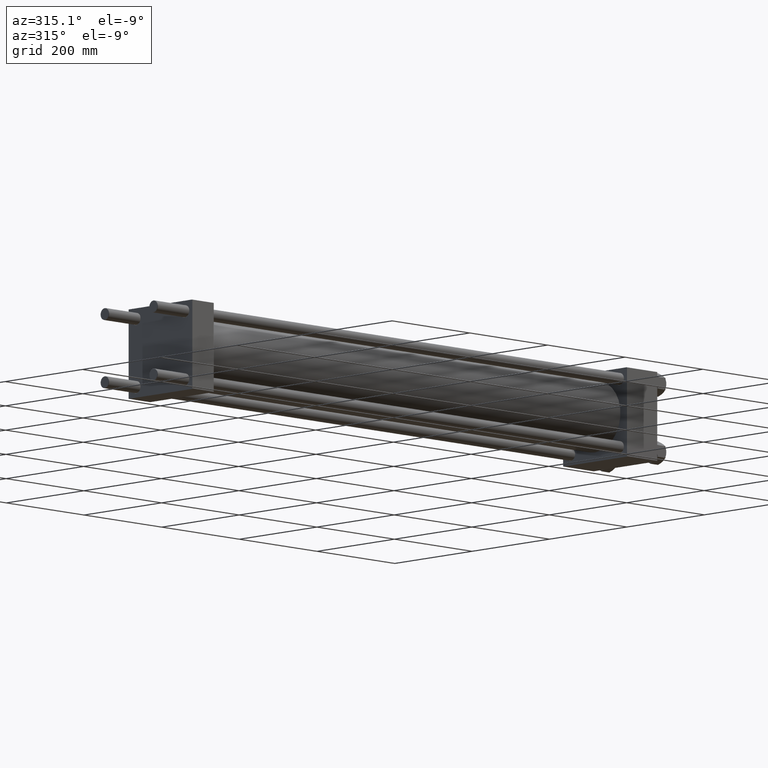
[diagram: clean part render]
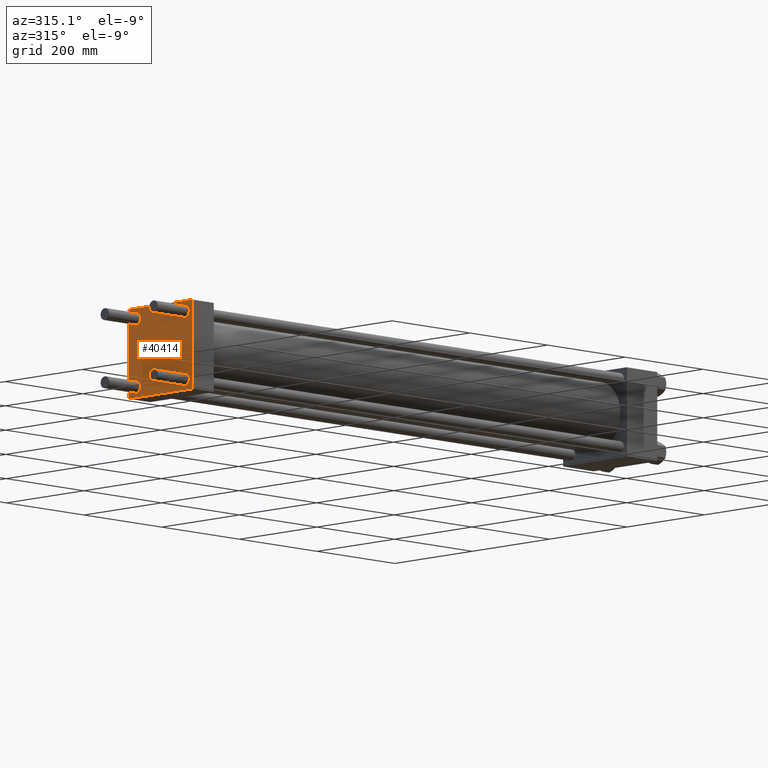
[diagram: same view with one face highlighted and labeled with its STEP entity id]
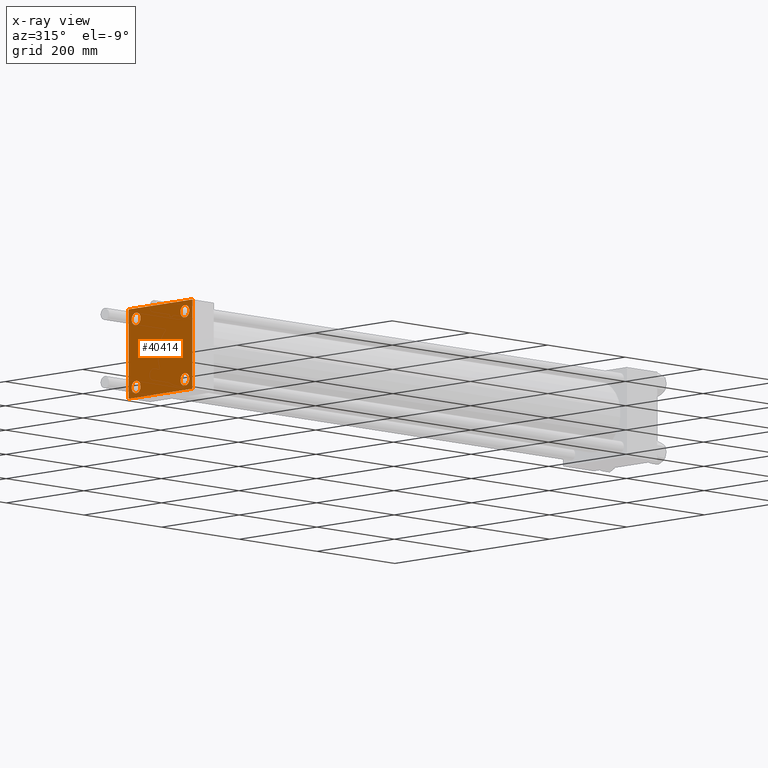
[diagram: x-ray of the same camera — body ghosted, the highlighted face saturated]
A machine part, auxiliary view. The second image highlights one B-rep face of the part: STEP entity #40414.
The next image is the same camera in x-ray: the body ghosted, the highlighted face saturated — about 0% of this face is hidden behind the body in this view.
In plain terms, the highlighted planar face has unit normal (-1, 0, 0).
Its self-contained STEP definition (entity closure, byte-faithful):
#383 = EDGE_LOOP ( 'NONE', ( #13868, #33209 ) ) ;
#536 = EDGE_CURVE ( 'NONE', #26061, #27438, #22005, .T. ) ;
#593 = EDGE_CURVE ( 'NONE', #13140, #39277, #13886, .T. ) ;
#1583 = EDGE_LOOP ( 'NONE', ( #27154, #8568 ) ) ;
#1890 = DIRECTION ( 'NONE',  ( 1.000000000000000000, -0.000000000000000000, -0.000000000000000000 ) ) ;
#2490 = CARTESIAN_POINT ( 'NONE',  ( 0.000000000000000000, 82.50000000000002842, -82.00000000000000000 ) ) ;
#2766 = EDGE_CURVE ( 'NONE', #22233, #37956, #21509, .T. ) ;
#3266 = AXIS2_PLACEMENT_3D ( 'NONE', #22447, #1890, #33919 ) ;
#3498 = LINE ( 'NONE', #30964, #31161 ) ;
#4586 = FACE_BOUND ( 'NONE', #42694, .T. ) ;
#4937 = CIRCLE ( 'NONE', #12223, 11.50000000000001066 ) ;
#6130 = CARTESIAN_POINT ( 'NONE',  ( 0.000000000000000000, -62.94999999999998153, -62.95000000000001705 ) ) ;
#6894 = AXIS2_PLACEMENT_3D ( 'NONE', #44515, #25670, #9656 ) ;
#7660 = CARTESIAN_POINT ( 'NONE',  ( 0.000000000000000000, -82.49999999999997158, 82.00000000000001421 ) ) ;
#7790 = CARTESIAN_POINT ( 'NONE',  ( 0.000000000000000000, 82.25000000000001421, -82.25000000000001421 ) ) ;
#8568 = ORIENTED_EDGE ( 'NONE', *, *, #12824, .T. ) ;
#9534 = DIRECTION ( 'NONE',  ( 1.000000000000000000, -0.000000000000000000, -0.000000000000000000 ) ) ;
#9656 = DIRECTION ( 'NONE',  ( 0.000000000000000000, 0.000000000000000000, 1.000000000000000000 ) ) ;
#9875 = ORIENTED_EDGE ( 'NONE', *, *, #10977, .T. ) ;
#9924 = CARTESIAN_POINT ( 'NONE',  ( 0.000000000000000000, -62.94999999999998153, -51.45000000000000995 ) ) ;
#9928 = DIRECTION ( 'NONE',  ( 0.000000000000000000, 0.000000000000000000, 1.000000000000000000 ) ) ;
#10310 = CARTESIAN_POINT ( 'NONE',  ( 0.000000000000000000, 82.50000000000002842, 82.50000000000002842 ) ) ;
#10488 = ORIENTED_EDGE ( 'NONE', *, *, #536, .T. ) ;
#10569 = LINE ( 'NONE', #26093, #31802 ) ;
#10758 = VERTEX_POINT ( 'NONE', #19507 ) ;
#10977 = EDGE_CURVE ( 'NONE', #11254, #47987, #40571, .T. ) ;
#11254 = VERTEX_POINT ( 'NONE', #37457 ) ;
#11291 = DIRECTION ( 'NONE',  ( 0.000000000000000000, -1.682156097916903588E-16, -1.000000000000000000 ) ) ;
#11304 = CARTESIAN_POINT ( 'NONE',  ( 0.000000000000000000, 62.95000000000000284, -62.95000000000000284 ) ) ;
#11719 = PLANE ( 'NONE',  #47073 ) ;
#11968 = FACE_BOUND ( 'NONE', #383, .T. ) ;
#12081 = CARTESIAN_POINT ( 'NONE',  ( 0.000000000000000000, -82.50000000000000000, -81.99999999999998579 ) ) ;
#12223 = AXIS2_PLACEMENT_3D ( 'NONE', #6130, #21640, #18071 ) ;
#12824 = EDGE_CURVE ( 'NONE', #21128, #16051, #47123, .T. ) ;
#13000 = CARTESIAN_POINT ( 'NONE',  ( 0.000000000000000000, -81.99999999999997158, 82.50000000000001421 ) ) ;
#13140 = VERTEX_POINT ( 'NONE', #41792 ) ;
#13485 = CIRCLE ( 'NONE', #41906, 11.50000000000001066 ) ;
#13847 = EDGE_CURVE ( 'NONE', #10758, #19262, #43673, .T. ) ;
#13868 = ORIENTED_EDGE ( 'NONE', *, *, #2766, .T. ) ;
#13886 = LINE ( 'NONE', #10310, #34578 ) ;
#14485 = CARTESIAN_POINT ( 'NONE',  ( 0.000000000000000000, 62.95000000000000284, 62.95000000000000284 ) ) ;
#14827 = EDGE_CURVE ( 'NONE', #16051, #21128, #37434, .T. ) ;
#14943 = EDGE_CURVE ( 'NONE', #41376, #19262, #38779, .T. ) ;
#15669 = CARTESIAN_POINT ( 'NONE',  ( 0.000000000000000000, -62.94999999999998153, 74.45000000000003126 ) ) ;
#15830 = VECTOR ( 'NONE', #30176, 1000.000000000000114 ) ;
#16051 = VERTEX_POINT ( 'NONE', #15669 ) ;
#17472 = LINE ( 'NONE', #48253, #23582 ) ;
#18071 = DIRECTION ( 'NONE',  ( 0.000000000000000000, 0.000000000000000000, 1.000000000000000000 ) ) ;
#18541 = EDGE_LOOP ( 'NONE', ( #10488, #24222, #22680, #42459, #38474, #27358, #38656, #36717 ) ) ;
#18657 = EDGE_CURVE ( 'NONE', #32538, #34881, #4937, .T. ) ;
#19262 = VERTEX_POINT ( 'NONE', #12081 ) ;
#19431 = CARTESIAN_POINT ( 'NONE',  ( 0.000000000000000000, -82.49999999999997158, 82.50000000000001421 ) ) ;
#19507 = CARTESIAN_POINT ( 'NONE',  ( 0.000000000000000000, -82.00000000000000000, -82.50000000000000000 ) ) ;
#20084 = FACE_BOUND ( 'NONE', #36843, .T. ) ;
#20121 = EDGE_CURVE ( 'NONE', #13140, #26061, #10569, .T. ) ;
#20705 = CIRCLE ( 'NONE', #6894, 11.50000000000001066 ) ;
#21044 = DIRECTION ( 'NONE',  ( 0.000000000000000000, -1.000000000000000000, -1.682156097916903588E-16 ) ) ;
#21128 = VERTEX_POINT ( 'NONE', #26407 ) ;
#21384 = DIRECTION ( 'NONE',  ( 1.000000000000000000, -0.000000000000000000, -0.000000000000000000 ) ) ;
#21509 = CIRCLE ( 'NONE', #25539, 11.50000000000001066 ) ;
#21640 = DIRECTION ( 'NONE',  ( 1.000000000000000000, -0.000000000000000000, -0.000000000000000000 ) ) ;
#22005 = LINE ( 'NONE', #41109, #41851 ) ;
#22233 = VERTEX_POINT ( 'NONE', #23417 ) ;
#22447 = CARTESIAN_POINT ( 'NONE',  ( 0.000000000000000000, -62.94999999999998153, 62.95000000000001705 ) ) ;
#22680 = ORIENTED_EDGE ( 'NONE', *, *, #45356, .T. ) ;
#23006 = DIRECTION ( 'NONE',  ( 0.000000000000000000, 0.000000000000000000, 1.000000000000000000 ) ) ;
#23417 = CARTESIAN_POINT ( 'NONE',  ( 0.000000000000000000, 62.95000000000000284, 74.45000000000001705 ) ) ;
#23582 = VECTOR ( 'NONE', #21044, 1000.000000000000000 ) ;
#23639 = AXIS2_PLACEMENT_3D ( 'NONE', #28880, #9534, #25052 ) ;
#24222 = ORIENTED_EDGE ( 'NONE', *, *, #30334, .T. ) ;
#24751 = ORIENTED_EDGE ( 'NONE', *, *, #33504, .T. ) ;
#24774 = EDGE_CURVE ( 'NONE', #41376, #39277, #3498, .T. ) ;
#24849 = DIRECTION ( 'NONE',  ( 0.000000000000000000, -1.000000000000000000, -8.410780489584519171E-17 ) ) ;
#25052 = DIRECTION ( 'NONE',  ( 0.000000000000000000, 0.000000000000000000, 1.000000000000000000 ) ) ;
#25228 = CARTESIAN_POINT ( 'NONE',  ( 0.000000000000000000, 82.00000000000005684, -82.49999999999997158 ) ) ;
#25539 = AXIS2_PLACEMENT_3D ( 'NONE', #28907, #37468, #41783 ) ;
#25580 = DIRECTION ( 'NONE',  ( 0.000000000000000000, 0.000000000000000000, -1.000000000000000000 ) ) ;
#25670 = DIRECTION ( 'NONE',  ( 1.000000000000000000, -0.000000000000000000, -0.000000000000000000 ) ) ;
#26061 = VERTEX_POINT ( 'NONE', #28277 ) ;
#26093 = CARTESIAN_POINT ( 'NONE',  ( 0.000000000000000000, 82.25000000000002842, 82.25000000000002842 ) ) ;
#26407 = CARTESIAN_POINT ( 'NONE',  ( 0.000000000000000000, -62.94999999999998153, 51.45000000000000995 ) ) ;
#27154 = ORIENTED_EDGE ( 'NONE', *, *, #14827, .T. ) ;
#27175 = EDGE_CURVE ( 'NONE', #37956, #22233, #40987, .T. ) ;
#27358 = ORIENTED_EDGE ( 'NONE', *, *, #24774, .T. ) ;
#27438 = VERTEX_POINT ( 'NONE', #2490 ) ;
#27721 = CARTESIAN_POINT ( 'NONE',  ( 0.000000000000000000, 0.000000000000000000, 0.000000000000000000 ) ) ;
#28277 = CARTESIAN_POINT ( 'NONE',  ( 0.000000000000000000, 82.50000000000002842, 82.00000000000005684 ) ) ;
#28359 = AXIS2_PLACEMENT_3D ( 'NONE', #11304, #38537, #23006 ) ;
#28880 = CARTESIAN_POINT ( 'NONE',  ( 0.000000000000000000, -62.94999999999998153, 62.95000000000001705 ) ) ;
#28907 = CARTESIAN_POINT ( 'NONE',  ( 0.000000000000000000, 62.95000000000000284, 62.95000000000000284 ) ) ;
#28929 = DIRECTION ( 'NONE',  ( 0.000000000000000000, 0.7071067811865474617, -0.7071067811865474617 ) ) ;
#30176 = DIRECTION ( 'NONE',  ( -0.000000000000000000, -0.7071067811865474617, -0.7071067811865474617 ) ) ;
#30334 = EDGE_CURVE ( 'NONE', #27438, #40272, #34515, .T. ) ;
#30717 = EDGE_CURVE ( 'NONE', #47987, #11254, #20705, .T. ) ;
#30964 = CARTESIAN_POINT ( 'NONE',  ( 0.000000000000000000, -82.25000000000000000, 82.25000000000000000 ) ) ;
#31161 = VECTOR ( 'NONE', #38348, 1000.000000000000114 ) ;
#31191 = CARTESIAN_POINT ( 'NONE',  ( 0.000000000000000000, 62.95000000000000284, -74.45000000000001705 ) ) ;
#31802 = VECTOR ( 'NONE', #28929, 1000.000000000000114 ) ;
#32538 = VERTEX_POINT ( 'NONE', #9924 ) ;
#32594 = CARTESIAN_POINT ( 'NONE',  ( 0.000000000000000000, -62.94999999999998153, -62.95000000000001705 ) ) ;
#33112 = CARTESIAN_POINT ( 'NONE',  ( 0.000000000000000000, -62.94999999999998153, -74.45000000000003126 ) ) ;
#33209 = ORIENTED_EDGE ( 'NONE', *, *, #27175, .T. ) ;
#33504 = EDGE_CURVE ( 'NONE', #34881, #32538, #13485, .T. ) ;
#33919 = DIRECTION ( 'NONE',  ( 0.000000000000000000, 0.000000000000000000, 1.000000000000000000 ) ) ;
#34515 = LINE ( 'NONE', #7790, #15830 ) ;
#34578 = VECTOR ( 'NONE', #24849, 1000.000000000000000 ) ;
#34881 = VERTEX_POINT ( 'NONE', #33112 ) ;
#35609 = DIRECTION ( 'NONE',  ( 0.000000000000000000, 0.000000000000000000, 1.000000000000000000 ) ) ;
#35870 = FACE_BOUND ( 'NONE', #1583, .T. ) ;
#36057 = CARTESIAN_POINT ( 'NONE',  ( 0.000000000000000000, -82.25000000000115108, -82.24999999999886313 ) ) ;
#36717 = ORIENTED_EDGE ( 'NONE', *, *, #20121, .T. ) ;
#36843 = EDGE_LOOP ( 'NONE', ( #9875, #48495 ) ) ;
#37396 = VECTOR ( 'NONE', #44180, 999.9999999999998863 ) ;
#37434 = CIRCLE ( 'NONE', #23639, 11.50000000000001066 ) ;
#37457 = CARTESIAN_POINT ( 'NONE',  ( 0.000000000000000000, 62.95000000000000284, -51.44999999999999574 ) ) ;
#37468 = DIRECTION ( 'NONE',  ( 1.000000000000000000, -0.000000000000000000, -0.000000000000000000 ) ) ;
#37718 = AXIS2_PLACEMENT_3D ( 'NONE', #14485, #37913, #49084 ) ;
#37913 = DIRECTION ( 'NONE',  ( 1.000000000000000000, -0.000000000000000000, -0.000000000000000000 ) ) ;
#37956 = VERTEX_POINT ( 'NONE', #39470 ) ;
#38348 = DIRECTION ( 'NONE',  ( -0.000000000000000000, 0.7071067811865474617, 0.7071067811865474617 ) ) ;
#38474 = ORIENTED_EDGE ( 'NONE', *, *, #14943, .F. ) ;
#38537 = DIRECTION ( 'NONE',  ( 1.000000000000000000, -0.000000000000000000, -0.000000000000000000 ) ) ;
#38656 = ORIENTED_EDGE ( 'NONE', *, *, #593, .F. ) ;
#38779 = LINE ( 'NONE', #19431, #44776 ) ;
#39277 = VERTEX_POINT ( 'NONE', #13000 ) ;
#39470 = CARTESIAN_POINT ( 'NONE',  ( 0.000000000000000000, 62.95000000000000284, 51.44999999999999574 ) ) ;
#39689 = DIRECTION ( 'NONE',  ( -1.000000000000000000, 0.000000000000000000, 0.000000000000000000 ) ) ;
#40272 = VERTEX_POINT ( 'NONE', #25228 ) ;
#40414 = ADVANCED_FACE ( 'NONE', ( #35870, #4586, #20084, #11968, #46809 ), #11719, .T. ) ;
#40571 = CIRCLE ( 'NONE', #28359, 11.50000000000001066 ) ;
#40987 = CIRCLE ( 'NONE', #37718, 11.50000000000001066 ) ;
#41109 = CARTESIAN_POINT ( 'NONE',  ( 0.000000000000000000, 82.50000000000002842, 82.50000000000002842 ) ) ;
#41376 = VERTEX_POINT ( 'NONE', #7660 ) ;
#41783 = DIRECTION ( 'NONE',  ( 0.000000000000000000, 0.000000000000000000, 1.000000000000000000 ) ) ;
#41792 = CARTESIAN_POINT ( 'NONE',  ( 0.000000000000000000, 82.00000000000005684, 82.50000000000002842 ) ) ;
#41851 = VECTOR ( 'NONE', #25580, 1000.000000000000000 ) ;
#41906 = AXIS2_PLACEMENT_3D ( 'NONE', #32594, #21384, #9928 ) ;
#42459 = ORIENTED_EDGE ( 'NONE', *, *, #13847, .T. ) ;
#42694 = EDGE_LOOP ( 'NONE', ( #46159, #24751 ) ) ;
#43673 = LINE ( 'NONE', #36057, #37396 ) ;
#44180 = DIRECTION ( 'NONE',  ( 0.000000000000000000, -0.7071067811865376918, 0.7071067811865574537 ) ) ;
#44515 = CARTESIAN_POINT ( 'NONE',  ( 0.000000000000000000, 62.95000000000000284, -62.95000000000000284 ) ) ;
#44776 = VECTOR ( 'NONE', #11291, 1000.000000000000000 ) ;
#45356 = EDGE_CURVE ( 'NONE', #40272, #10758, #17472, .T. ) ;
#46159 = ORIENTED_EDGE ( 'NONE', *, *, #18657, .T. ) ;
#46809 = FACE_OUTER_BOUND ( 'NONE', #18541, .T. ) ;
#47073 = AXIS2_PLACEMENT_3D ( 'NONE', #27721, #39689, #35609 ) ;
#47123 = CIRCLE ( 'NONE', #3266, 11.50000000000001066 ) ;
#47987 = VERTEX_POINT ( 'NONE', #31191 ) ;
#48253 = CARTESIAN_POINT ( 'NONE',  ( 0.000000000000000000, 82.50000000000002842, -82.49999999999997158 ) ) ;
#48495 = ORIENTED_EDGE ( 'NONE', *, *, #30717, .T. ) ;
#49084 = DIRECTION ( 'NONE',  ( 0.000000000000000000, 0.000000000000000000, 1.000000000000000000 ) ) ;